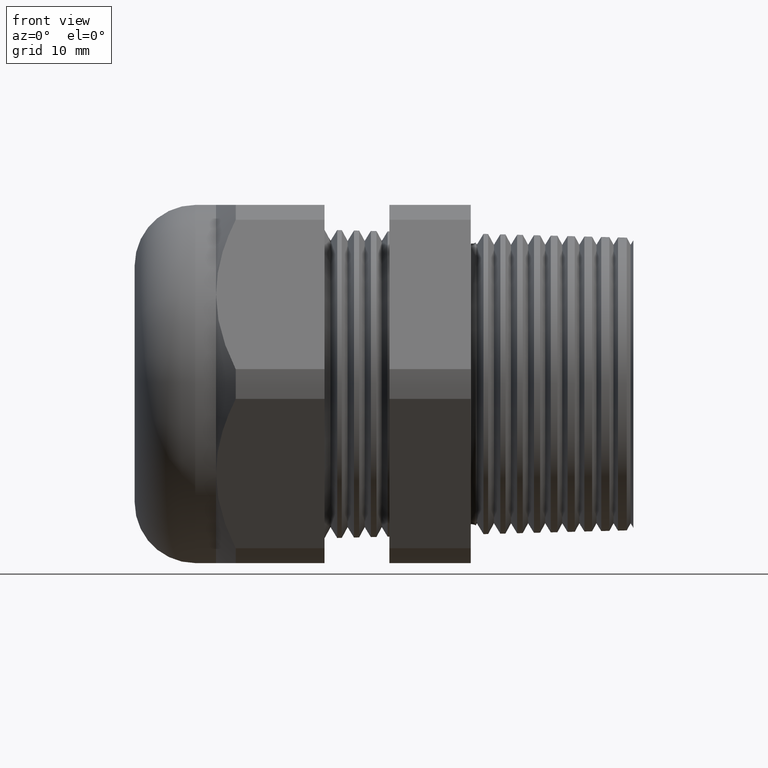
[diagram: clean part render]
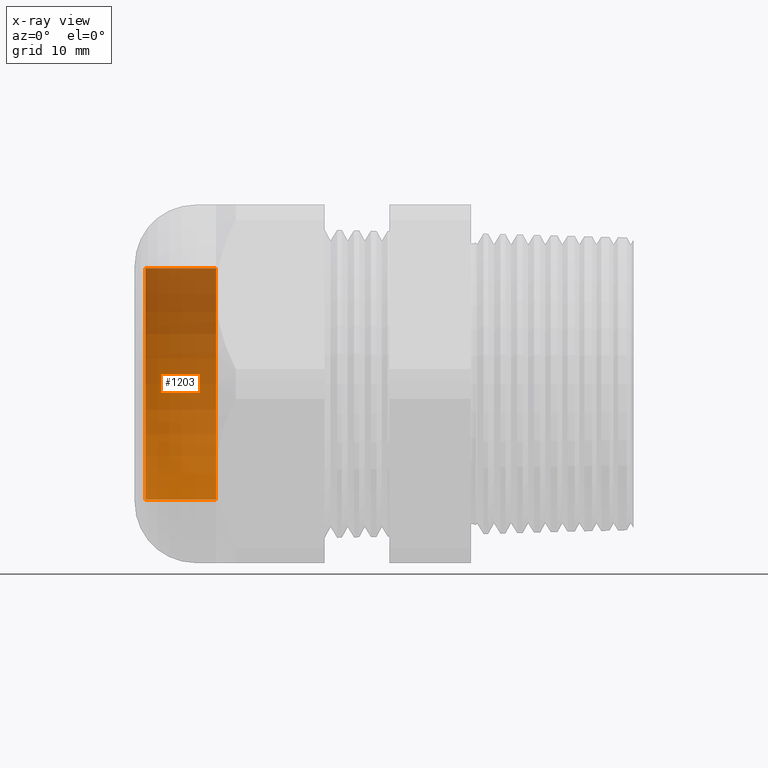
[diagram: x-ray — body ghosted, one internal face saturated and labeled with its STEP entity id]
A machine part, front view, then the same camera in x-ray: the body is ghosted and one INTERNAL B-rep face — a face not visible from any outside direction — is saturated and labeled: STEP entity #1203.
In plain terms, the highlighted cylindrical surface (partial cylindrical patch) has radius 10.668 mm, axis along (1, 0, 0).
Its self-contained STEP definition (entity closure, byte-faithful):
#1128 = ORIENTED_EDGE ( 'NONE', *, *, #1151, .T. ) ;
#1129 = ORIENTED_EDGE ( 'NONE', *, *, #1130, .T. ) ;
#1130 = EDGE_CURVE ( 'NONE', #1149, #1131, #3201, .T. ) ;
#1131 = VERTEX_POINT ( 'NONE', #3197 ) ;
#1132 = ORIENTED_EDGE ( 'NONE', *, *, #1133, .F. ) ;
#1133 = EDGE_CURVE ( 'NONE', #1134, #1131, #3196, .T. ) ;
#1134 = VERTEX_POINT ( 'NONE', #3254 ) ;
#1135 = ORIENTED_EDGE ( 'NONE', *, *, #1136, .F. ) ;
#1136 = EDGE_CURVE ( 'NONE', #1152, #1134, #3253, .T. ) ;
#1149 = VERTEX_POINT ( 'NONE', #3281 ) ;
#1151 = EDGE_CURVE ( 'NONE', #1152, #1149, #3280, .T. ) ;
#1152 = VERTEX_POINT ( 'NONE', #3275 ) ;
#1203 = ADVANCED_FACE ( 'NONE', ( #3330 ), #3329, .T. ) ;
#1204 = EDGE_LOOP ( 'NONE', ( #1128, #1129, #1132, #1135 ) ) ;
#3193 = DIRECTION ( 'NONE',  ( 1.000000000000000000, 0.0000000000000000000, 0.0000000000000000000 ) ) ;
#3194 = CARTESIAN_POINT ( 'NONE',  ( -1.234724409448819000, 0.0000000000000000000, 0.0000000000000000000 ) ) ;
#3195 = AXIS2_PLACEMENT_3D ( 'NONE', #3194, #3193, #3255 ) ;
#3196 = CIRCLE ( 'NONE', #3195, 0.4200000000000000400 ) ;
#3197 = CARTESIAN_POINT ( 'NONE',  ( -1.234724409448819000, 5.143516556418884400E-017, 0.4200000000000000400 ) ) ;
#3198 = DIRECTION ( 'NONE',  ( 1.000000000000000000, 0.0000000000000000000, 0.0000000000000000000 ) ) ;
#3199 = VECTOR ( 'NONE', #3198, 39.37007874015748100 ) ;
#3200 = CARTESIAN_POINT ( 'NONE',  ( 0.0000000000000000000, 5.143516556418884400E-017, 0.4200000000000000400 ) ) ;
#3201 = LINE ( 'NONE', #3200, #3199 ) ;
#3250 = DIRECTION ( 'NONE',  ( 1.000000000000000000, 0.0000000000000000000, 0.0000000000000000000 ) ) ;
#3251 = VECTOR ( 'NONE', #3250, 39.37007874015748100 ) ;
#3252 = CARTESIAN_POINT ( 'NONE',  ( 0.0000000000000000000, 0.0000000000000000000, -0.4200000000000000400 ) ) ;
#3253 = LINE ( 'NONE', #3252, #3251 ) ;
#3254 = CARTESIAN_POINT ( 'NONE',  ( -1.234724409448819000, 0.0000000000000000000, -0.4200000000000000400 ) ) ;
#3255 = DIRECTION ( 'NONE',  ( 0.0000000000000000000, 0.0000000000000000000, -1.000000000000000000 ) ) ;
#3275 = CARTESIAN_POINT ( 'NONE',  ( -1.491000000000000100, 0.0000000000000000000, -0.4200000000000001000 ) ) ;
#3276 = DIRECTION ( 'NONE',  ( 0.0000000000000000000, 0.0000000000000000000, -1.000000000000000000 ) ) ;
#3277 = DIRECTION ( 'NONE',  ( 1.000000000000000000, 0.0000000000000000000, 0.0000000000000000000 ) ) ;
#3278 = CARTESIAN_POINT ( 'NONE',  ( -1.491000000000000100, 0.0000000000000000000, 0.0000000000000000000 ) ) ;
#3279 = AXIS2_PLACEMENT_3D ( 'NONE', #3278, #3277, #3276 ) ;
#3280 = CIRCLE ( 'NONE', #3279, 0.4200000000000001000 ) ;
#3281 = CARTESIAN_POINT ( 'NONE',  ( -1.491000000000000100, 5.143516556418885600E-017, 0.4200000000000001000 ) ) ;
#3324 = DIRECTION ( 'NONE',  ( 0.0000000000000000000, 0.0000000000000000000, -1.000000000000000000 ) ) ;
#3325 = DIRECTION ( 'NONE',  ( 1.000000000000000000, 0.0000000000000000000, 0.0000000000000000000 ) ) ;
#3326 = CARTESIAN_POINT ( 'NONE',  ( 0.0000000000000000000, 0.0000000000000000000, 0.0000000000000000000 ) ) ;
#3327 = AXIS2_PLACEMENT_3D ( 'NONE', #3326, #3325, #3324 ) ;
#3329 = CYLINDRICAL_SURFACE ( 'NONE', #3327, 0.4200000000000000400 ) ;
#3330 = FACE_OUTER_BOUND ( 'NONE', #1204, .T. ) ;